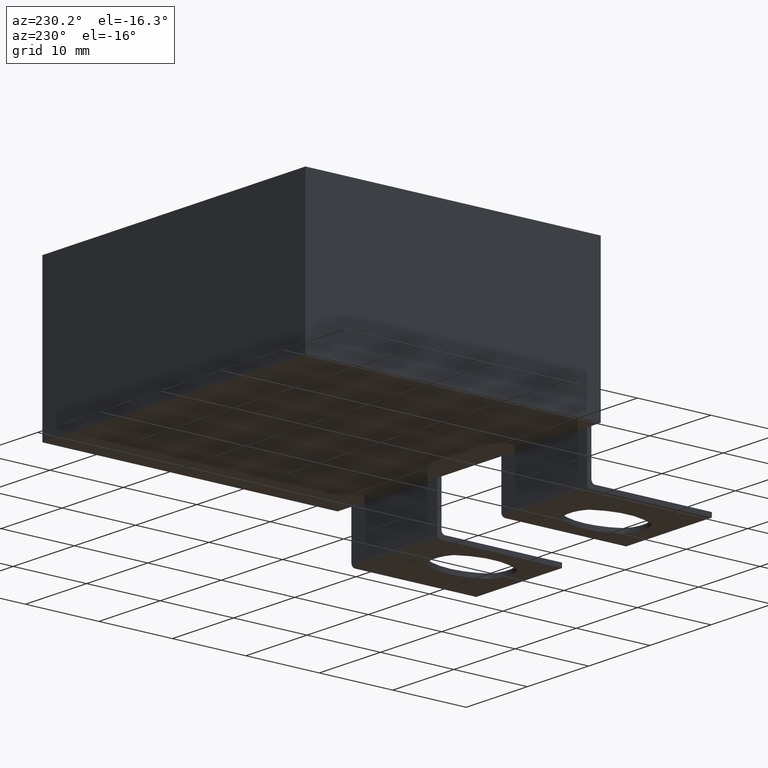
[diagram: clean part render]
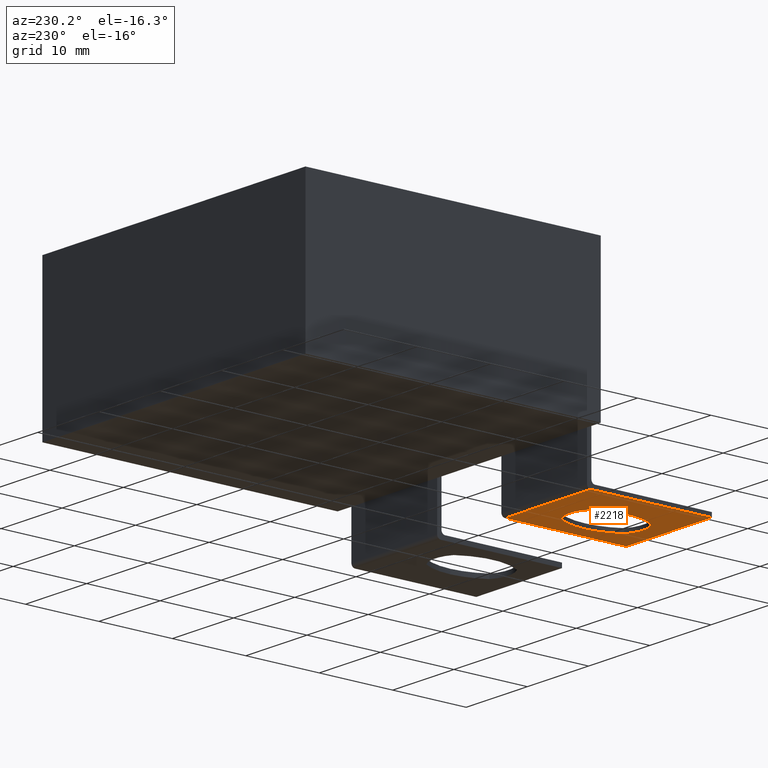
[diagram: same view with one face highlighted and labeled with its STEP entity id]
A machine part, auxiliary view. The second image highlights one B-rep face of the part: STEP entity #2218.
In plain terms, the highlighted planar face has unit normal (-0, 0, 1).
Its self-contained STEP definition (entity closure, byte-faithful):
#41 = EDGE_LOOP ( 'NONE', ( #3167, #2280, #1545, #974, #1649 ) ) ;
#45 = VERTEX_POINT ( 'NONE', #168 ) ;
#55 = LINE ( 'NONE', #893, #1795 ) ;
#61 = VERTEX_POINT ( 'NONE', #3362 ) ;
#89 = VECTOR ( 'NONE', #1539, 1000.000000000000000 ) ;
#148 = CARTESIAN_POINT ( 'NONE',  ( 16.25000000000000000, -0.5000000000000000000, -6.645844941771883900 ) ) ;
#168 = CARTESIAN_POINT ( 'NONE',  ( 8.241905311194468500, -13.80208425939126100, -6.645844941771883900 ) ) ;
#181 = CARTESIAN_POINT ( 'NONE',  ( 10.49000000000000000, -8.469703467000592000, -6.645844941771883900 ) ) ;
#210 = CIRCLE ( 'NONE', #3275, 3.969700827055923300 ) ;
#236 = CARTESIAN_POINT ( 'NONE',  ( 5.972142857143740700, -9.500000000000484900, -6.645844941771883900 ) ) ;
#334 = FACE_BOUND ( 'NONE', #41, .T. ) ;
#358 = LINE ( 'NONE', #456, #89 ) ;
#372 = VERTEX_POINT ( 'NONE', #1612 ) ;
#456 = CARTESIAN_POINT ( 'NONE',  ( 16.25000000000000000, -0.5999999999999999800, -6.645844941771883900 ) ) ;
#501 = EDGE_CURVE ( 'NONE', #2150, #61, #55, .T. ) ;
#527 = DIRECTION ( 'NONE',  ( -0.0000000000000000000, 1.000000000000000000, -0.0000000000000000000 ) ) ;
#586 = CIRCLE ( 'NONE', #2377, 3.969700827064640300 ) ;
#674 = VERTEX_POINT ( 'NONE', #2989 ) ;
#711 = AXIS2_PLACEMENT_3D ( 'NONE', #1221, #3117, #1495 ) ;
#893 = CARTESIAN_POINT ( 'NONE',  ( 2.250000000000000400, -16.99999999999999600, -6.645844941771883900 ) ) ;
#935 = EDGE_CURVE ( 'NONE', #1411, #2502, #2719, .T. ) ;
#963 = AXIS2_PLACEMENT_3D ( 'NONE', #236, #3450, #2687 ) ;
#974 = ORIENTED_EDGE ( 'NONE', *, *, #3276, .T. ) ;
#1018 = DIRECTION ( 'NONE',  ( -0.0000000000000000000, 0.0000000000000000000, 1.000000000000000000 ) ) ;
#1034 = CARTESIAN_POINT ( 'NONE',  ( 16.25000000000000000, -0.5000000000000000000, -6.645844941771883900 ) ) ;
#1091 = ORIENTED_EDGE ( 'NONE', *, *, #1122, .F. ) ;
#1122 = EDGE_CURVE ( 'NONE', #61, #1980, #358, .T. ) ;
#1221 = CARTESIAN_POINT ( 'NONE',  ( 5.972142857143740700, -9.500000000000484900, -6.645844941771883900 ) ) ;
#1298 = DIRECTION ( 'NONE',  ( -0.0000000000000000000, 0.0000000000000000000, 1.000000000000000000 ) ) ;
#1411 = VERTEX_POINT ( 'NONE', #1728 ) ;
#1412 = FACE_OUTER_BOUND ( 'NONE', #1672, .T. ) ;
#1440 = CARTESIAN_POINT ( 'NONE',  ( 15.00785714285626000, -9.500000000000483200, -6.645844941771883900 ) ) ;
#1495 = DIRECTION ( 'NONE',  ( 1.000000000000000000, 0.0000000000000000000, 0.0000000000000000000 ) ) ;
#1537 = LINE ( 'NONE', #1572, #1706 ) ;
#1539 = DIRECTION ( 'NONE',  ( -0.0000000000000000000, 1.000000000000000000, -0.0000000000000000000 ) ) ;
#1545 = ORIENTED_EDGE ( 'NONE', *, *, #2175, .T. ) ;
#1557 = EDGE_CURVE ( 'NONE', #2666, #1980, #3263, .T. ) ;
#1568 = DIRECTION ( 'NONE',  ( -0.0000000000000000000, 0.0000000000000000000, 1.000000000000000000 ) ) ;
#1572 = CARTESIAN_POINT ( 'NONE',  ( 2.250000000000000400, -0.5999999999999999800, -6.645844941771883900 ) ) ;
#1591 = DIRECTION ( 'NONE',  ( 1.000000000000000000, 0.0000000000000000000, 0.0000000000000000000 ) ) ;
#1602 = CARTESIAN_POINT ( 'NONE',  ( 2.250000000000000400, -0.5999999999999999800, -6.645844941771883900 ) ) ;
#1612 = CARTESIAN_POINT ( 'NONE',  ( 8.241905311194468500, -5.197915740609704300, -6.645844941771883900 ) ) ;
#1631 = ORIENTED_EDGE ( 'NONE', *, *, #501, .F. ) ;
#1649 = ORIENTED_EDGE ( 'NONE', *, *, #2221, .T. ) ;
#1672 = EDGE_LOOP ( 'NONE', ( #3391, #2070, #1091, #1631 ) ) ;
#1706 = VECTOR ( 'NONE', #527, 1000.000000000000000 ) ;
#1728 = CARTESIAN_POINT ( 'NONE',  ( 13.99000000000089400, -9.500000000000484900, -6.645844941771883900 ) ) ;
#1795 = VECTOR ( 'NONE', #2530, 1000.000000000000000 ) ;
#1806 = CARTESIAN_POINT ( 'NONE',  ( 2.250000000000000400, -16.99999999999999600, -6.645844941771883900 ) ) ;
#1918 = VECTOR ( 'NONE', #3182, 1000.000000000000000 ) ;
#1980 = VERTEX_POINT ( 'NONE', #148 ) ;
#2070 = ORIENTED_EDGE ( 'NONE', *, *, #1557, .T. ) ;
#2073 = DIRECTION ( 'NONE',  ( 1.000000000000000000, 0.0000000000000000000, 0.0000000000000000000 ) ) ;
#2150 = VERTEX_POINT ( 'NONE', #1806 ) ;
#2175 = EDGE_CURVE ( 'NONE', #2502, #372, #586, .T. ) ;
#2207 = DIRECTION ( 'NONE',  ( 1.000000000000000000, 0.0000000000000000000, 0.0000000000000000000 ) ) ;
#2218 = ADVANCED_FACE ( 'NONE', ( #334, #1412 ), #3228, .F. ) ;
#2221 = EDGE_CURVE ( 'NONE', #45, #674, #210, .T. ) ;
#2263 = CIRCLE ( 'NONE', #2587, 8.017857142857151200 ) ;
#2280 = ORIENTED_EDGE ( 'NONE', *, *, #935, .T. ) ;
#2377 = AXIS2_PLACEMENT_3D ( 'NONE', #181, #1298, #2073 ) ;
#2388 = DIRECTION ( 'NONE',  ( 1.000000000000000000, 0.0000000000000000000, 0.0000000000000000000 ) ) ;
#2502 = VERTEX_POINT ( 'NONE', #2855 ) ;
#2530 = DIRECTION ( 'NONE',  ( 1.000000000000000000, 0.0000000000000000000, 0.0000000000000000000 ) ) ;
#2587 = AXIS2_PLACEMENT_3D ( 'NONE', #1440, #1018, #2388 ) ;
#2623 = AXIS2_PLACEMENT_3D ( 'NONE', #1602, #2943, #2207 ) ;
#2641 = CIRCLE ( 'NONE', #963, 8.017857142857153000 ) ;
#2666 = VERTEX_POINT ( 'NONE', #3434 ) ;
#2687 = DIRECTION ( 'NONE',  ( 1.000000000000000000, 0.0000000000000000000, 0.0000000000000000000 ) ) ;
#2719 = CIRCLE ( 'NONE', #711, 8.017857142857153000 ) ;
#2855 = CARTESIAN_POINT ( 'NONE',  ( 12.73809468880553200, -5.197915740609705200, -6.645844941771883900 ) ) ;
#2943 = DIRECTION ( 'NONE',  ( -0.0000000000000000000, 0.0000000000000000000, 1.000000000000000000 ) ) ;
#2989 = CARTESIAN_POINT ( 'NONE',  ( 12.73809468880553600, -13.80208425939126100, -6.645844941771883900 ) ) ;
#3117 = DIRECTION ( 'NONE',  ( -0.0000000000000000000, 0.0000000000000000000, 1.000000000000000000 ) ) ;
#3167 = ORIENTED_EDGE ( 'NONE', *, *, #3193, .T. ) ;
#3182 = DIRECTION ( 'NONE',  ( 1.000000000000000000, -0.0000000000000000000, 0.0000000000000000000 ) ) ;
#3193 = EDGE_CURVE ( 'NONE', #674, #1411, #2641, .T. ) ;
#3219 = CARTESIAN_POINT ( 'NONE',  ( 10.49000000000000200, -10.53029653301095100, -6.645844941771883900 ) ) ;
#3228 = PLANE ( 'NONE',  #2623 ) ;
#3261 = EDGE_CURVE ( 'NONE', #2150, #2666, #1537, .T. ) ;
#3263 = LINE ( 'NONE', #1034, #1918 ) ;
#3275 = AXIS2_PLACEMENT_3D ( 'NONE', #3219, #1568, #1591 ) ;
#3276 = EDGE_CURVE ( 'NONE', #372, #45, #2263, .T. ) ;
#3362 = CARTESIAN_POINT ( 'NONE',  ( 16.25000000000000000, -16.99999999999999600, -6.645844941771883900 ) ) ;
#3391 = ORIENTED_EDGE ( 'NONE', *, *, #3261, .T. ) ;
#3434 = CARTESIAN_POINT ( 'NONE',  ( 2.250000000000000400, -0.5000000000000000000, -6.645844941771883900 ) ) ;
#3450 = DIRECTION ( 'NONE',  ( -0.0000000000000000000, 0.0000000000000000000, 1.000000000000000000 ) ) ;